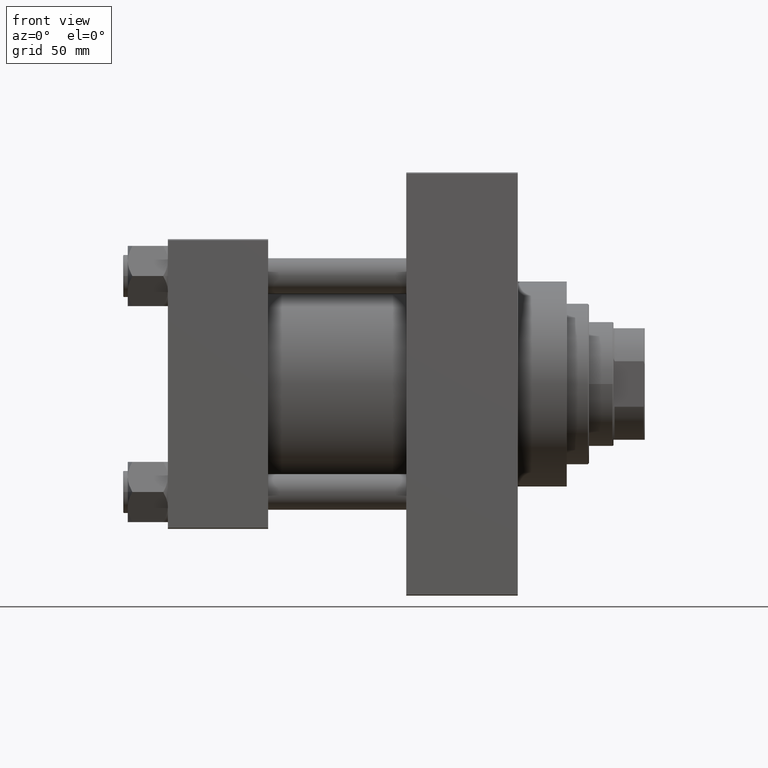
[diagram: clean part render]
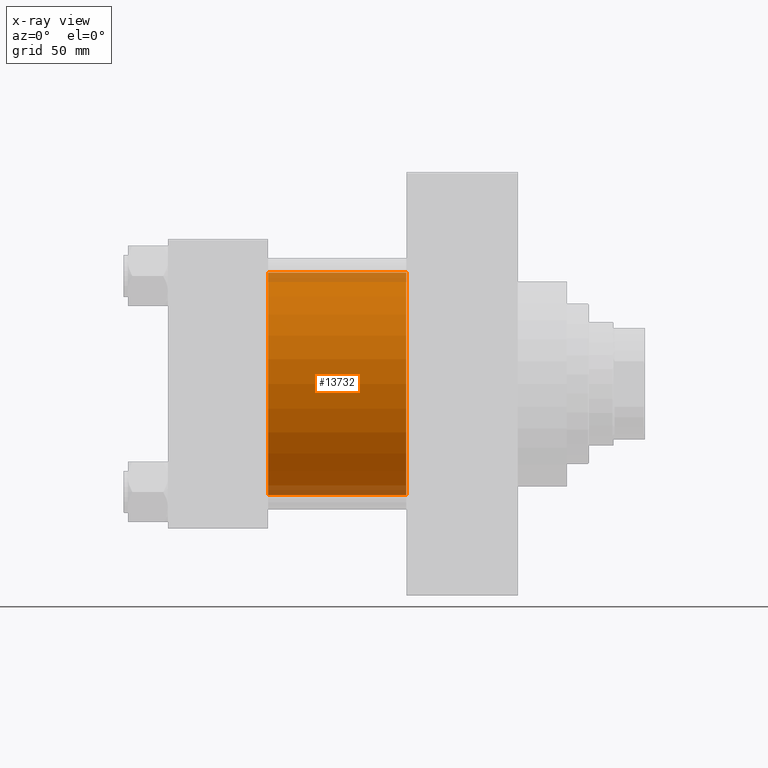
[diagram: x-ray — body ghosted, one internal face saturated and labeled with its STEP entity id]
A machine part, front view, then the same camera in x-ray: the body is ghosted and one INTERNAL B-rep face — a face not visible from any outside direction — is saturated and labeled: STEP entity #13732.
In plain terms, the highlighted cylindrical surface (partial cylindrical patch) has radius 50 mm, axis along (-1, -0, -0).
Its self-contained STEP definition (entity closure, byte-faithful):
#214 = AXIS2_PLACEMENT_3D ( 'NONE', #36917, #29462, #7462 ) ;
#926 = LINE ( 'NONE', #15434, #29078 ) ;
#2411 = CYLINDRICAL_SURFACE ( 'NONE', #39201, 50.00000000000000000 ) ;
#6286 = DIRECTION ( 'NONE',  ( -1.000000000000000000, -0.000000000000000000, -0.000000000000000000 ) ) ;
#6505 = ORIENTED_EDGE ( 'NONE', *, *, #35169, .F. ) ;
#6796 = AXIS2_PLACEMENT_3D ( 'NONE', #37111, #40497, #7188 ) ;
#6885 = CARTESIAN_POINT ( 'NONE',  ( 107.0000000000000000, 3.521148781771555838E-15, -50.00000000000000000 ) ) ;
#6934 = VERTEX_POINT ( 'NONE', #6885 ) ;
#7188 = DIRECTION ( 'NONE',  ( 0.000000000000000000, 0.000000000000000000, -1.000000000000000000 ) ) ;
#7462 = DIRECTION ( 'NONE',  ( 0.000000000000000000, 0.000000000000000000, -1.000000000000000000 ) ) ;
#8243 = LINE ( 'NONE', #41320, #25986 ) ;
#13712 = CIRCLE ( 'NONE', #6796, 50.00000000000000000 ) ;
#13732 = ADVANCED_FACE ( 'NONE', ( #39363 ), #2411, .F. ) ;
#15434 = CARTESIAN_POINT ( 'NONE',  ( 107.0000000000000000, 3.521148781771555838E-15, -50.00000000000000000 ) ) ;
#15737 = DIRECTION ( 'NONE',  ( -1.000000000000000000, -0.000000000000000000, -0.000000000000000000 ) ) ;
#17162 = CARTESIAN_POINT ( 'NONE',  ( 107.0000000000000000, -2.602085213965210642E-15, 0.000000000000000000 ) ) ;
#18323 = EDGE_LOOP ( 'NONE', ( #30884, #46490, #32797, #6505 ) ) ;
#19819 = CARTESIAN_POINT ( 'NONE',  ( 45.00000000000000000, 3.521148781771555838E-15, -50.00000000000000000 ) ) ;
#20544 = CARTESIAN_POINT ( 'NONE',  ( 107.0000000000000000, -2.602085213965210642E-15, 50.00000000000000000 ) ) ;
#21027 = DIRECTION ( 'NONE',  ( 0.000000000000000000, 0.000000000000000000, 1.000000000000000000 ) ) ;
#22453 = DIRECTION ( 'NONE',  ( -1.000000000000000000, -0.000000000000000000, -0.000000000000000000 ) ) ;
#25986 = VECTOR ( 'NONE', #15737, 1000.000000000000000 ) ;
#27520 = EDGE_CURVE ( 'NONE', #31944, #6934, #35674, .T. ) ;
#29078 = VECTOR ( 'NONE', #22453, 1000.000000000000000 ) ;
#29146 = CARTESIAN_POINT ( 'NONE',  ( 45.00000000000000000, -2.602085213965210642E-15, 50.00000000000000000 ) ) ;
#29462 = DIRECTION ( 'NONE',  ( 1.000000000000000000, 0.000000000000000000, 0.000000000000000000 ) ) ;
#30422 = VERTEX_POINT ( 'NONE', #19819 ) ;
#30884 = ORIENTED_EDGE ( 'NONE', *, *, #27520, .T. ) ;
#31944 = VERTEX_POINT ( 'NONE', #20544 ) ;
#32797 = ORIENTED_EDGE ( 'NONE', *, *, #41685, .F. ) ;
#34692 = EDGE_CURVE ( 'NONE', #6934, #30422, #926, .T. ) ;
#35169 = EDGE_CURVE ( 'NONE', #31944, #40652, #8243, .T. ) ;
#35674 = CIRCLE ( 'NONE', #214, 50.00000000000000000 ) ;
#36917 = CARTESIAN_POINT ( 'NONE',  ( 107.0000000000000000, -2.602085213965210642E-15, 0.000000000000000000 ) ) ;
#37111 = CARTESIAN_POINT ( 'NONE',  ( 45.00000000000000000, -2.602085213965210642E-15, 0.000000000000000000 ) ) ;
#39201 = AXIS2_PLACEMENT_3D ( 'NONE', #17162, #6286, #21027 ) ;
#39363 = FACE_OUTER_BOUND ( 'NONE', #18323, .T. ) ;
#40497 = DIRECTION ( 'NONE',  ( 1.000000000000000000, 0.000000000000000000, 0.000000000000000000 ) ) ;
#40652 = VERTEX_POINT ( 'NONE', #29146 ) ;
#41320 = CARTESIAN_POINT ( 'NONE',  ( 107.0000000000000000, -2.602085213965210642E-15, 50.00000000000000000 ) ) ;
#41685 = EDGE_CURVE ( 'NONE', #40652, #30422, #13712, .T. ) ;
#46490 = ORIENTED_EDGE ( 'NONE', *, *, #34692, .T. ) ;